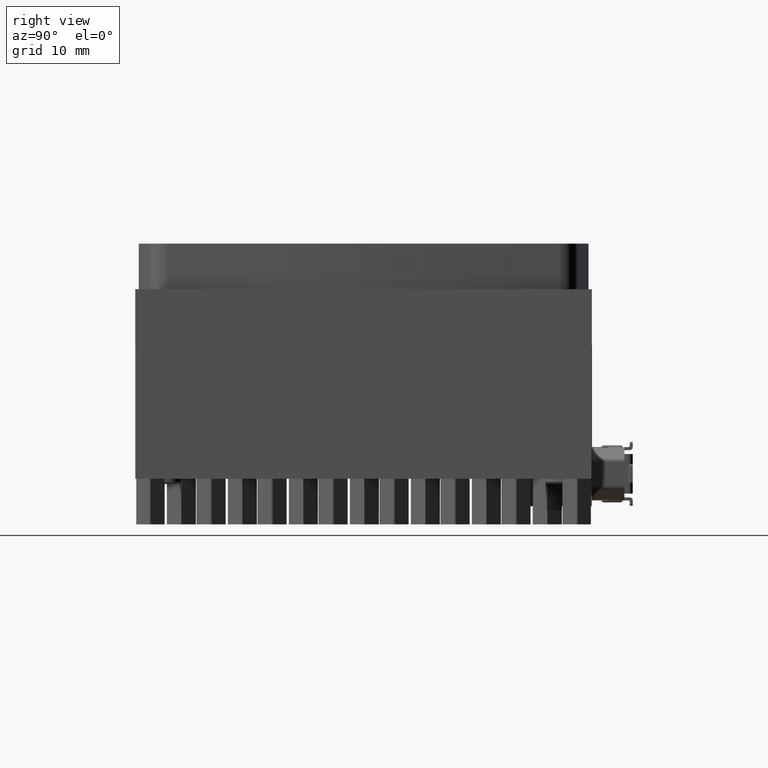
[diagram: clean part render]
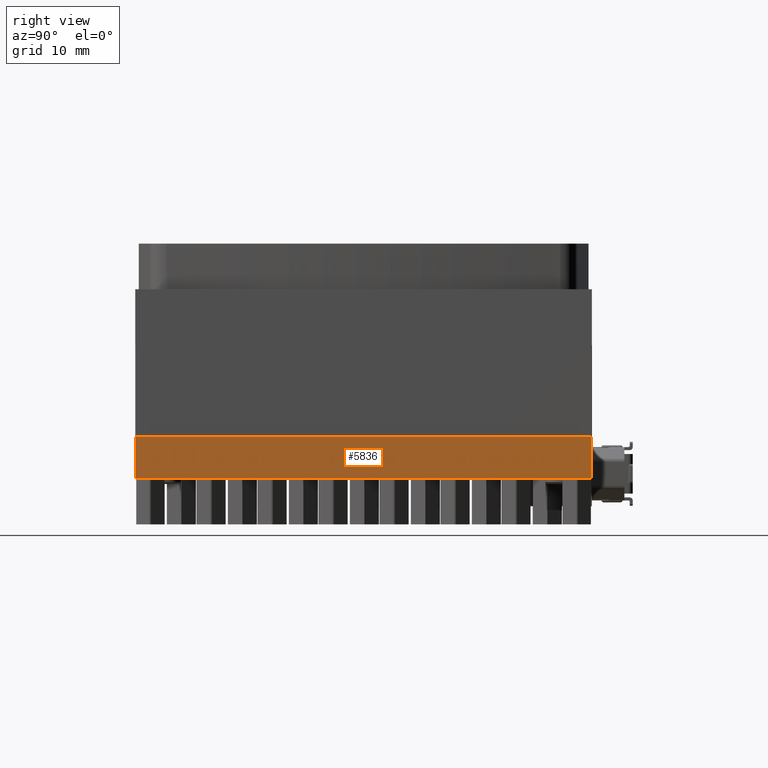
[diagram: same view with one face highlighted and labeled with its STEP entity id]
A machine part, right view. The second image highlights one B-rep face of the part: STEP entity #5836.
In plain terms, the highlighted planar face has unit normal (-1, 0.0002, -0).
Its self-contained STEP definition (entity closure, byte-faithful):
#2141=PLANE('',#54289);
#5836=ADVANCED_FACE('',(#8788),#2141,.F.);
#8788=FACE_OUTER_BOUND('',#12164,.T.);
#12164=EDGE_LOOP('',(#34540,#34541,#34542,#34543));
#17480=LINE('',#81004,#23363);
#17494=LINE('',#81042,#23377);
#17495=LINE('',#81044,#23378);
#17496=LINE('',#81046,#23379);
#23363=VECTOR('',#64688,1.);
#23377=VECTOR('',#64718,1.);
#23378=VECTOR('',#64719,1.);
#23379=VECTOR('',#64720,1.);
#34540=ORIENTED_EDGE('',*,*,#48913,.F.);
#34541=ORIENTED_EDGE('',*,*,#48932,.T.);
#34542=ORIENTED_EDGE('',*,*,#48933,.F.);
#34543=ORIENTED_EDGE('',*,*,#48934,.T.);
#42839=VERTEX_POINT('',#81003);
#42840=VERTEX_POINT('',#81005);
#42856=VERTEX_POINT('',#81043);
#42857=VERTEX_POINT('',#81045);
#48913=EDGE_CURVE('',#42839,#42840,#17480,.T.);
#48932=EDGE_CURVE('',#42839,#42856,#17494,.T.);
#48933=EDGE_CURVE('',#42857,#42856,#17495,.T.);
#48934=EDGE_CURVE('',#42857,#42840,#17496,.T.);
#54289=AXIS2_PLACEMENT_3D('',#81047,#64721,#64722);
#64688=DIRECTION('',(-0.000156900304310473,0.999999987691147,0.));
#64718=DIRECTION('',(0.,0.,-1.));
#64719=DIRECTION('',(0.000156900304310473,-0.999999987691147,0.));
#64720=DIRECTION('',(0.,0.,1.));
#64721=DIRECTION('',(-0.999999987691147,-0.000156900304310473,0.));
#64722=DIRECTION('',(0.000156900304310474,-0.999999987691147,0.));
#81003=CARTESIAN_POINT('',(30.3535267004128,-29.8515357144838,5.));
#81004=CARTESIAN_POINT('',(30.3524954944729,-23.2791716151281,5.));
#81005=CARTESIAN_POINT('',(30.3441597521302,29.8484642855162,5.));
#81042=CARTESIAN_POINT('',(30.3535267004128,-29.8515357144838,6.));
#81043=CARTESIAN_POINT('',(30.3535267004128,-29.8515357144838,-0.5));
#81044=CARTESIAN_POINT('',(30.3535502489111,-30.0016214526551,-0.5));
#81045=CARTESIAN_POINT('',(30.3441597521302,29.8484642855162,-0.5));
#81046=CARTESIAN_POINT('',(30.3441597521302,29.8484642855162,6.));
#81047=CARTESIAN_POINT('',(30.3535502489111,-30.0016214526551,6.));